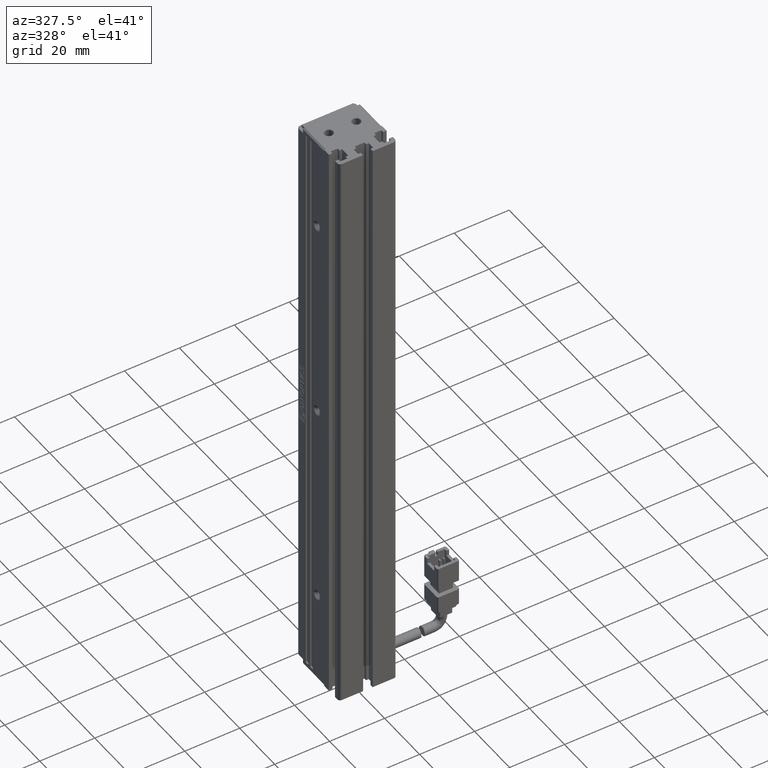
[diagram: clean part render]
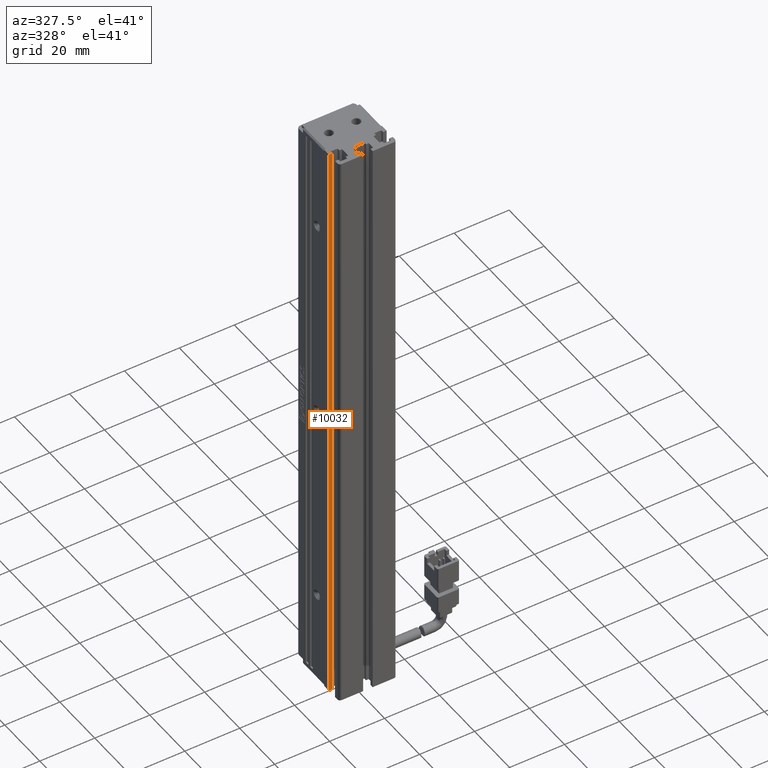
[diagram: same view with one face highlighted and labeled with its STEP entity id]
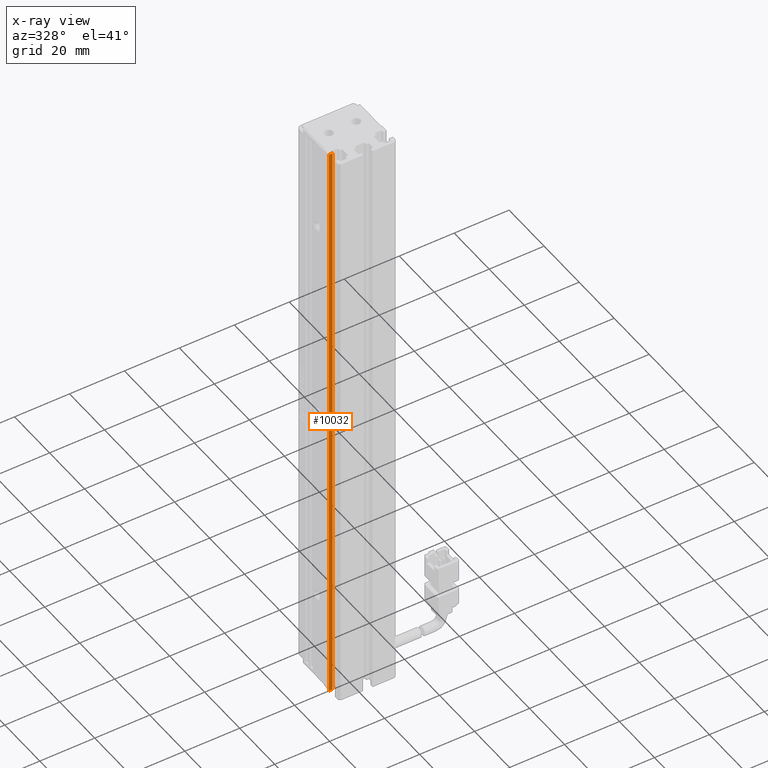
[diagram: x-ray of the same camera — body ghosted, the highlighted face saturated]
A machine part, auxiliary view. The second image highlights one B-rep face of the part: STEP entity #10032.
The next image is the same camera in x-ray: the body ghosted, the highlighted face saturated — about 0% of this face is hidden behind the body in this view.
In plain terms, the highlighted planar face has unit normal (0, 1, 0).
Its self-contained STEP definition (entity closure, byte-faithful):
#1270 = VECTOR ( 'NONE', #25240, 1000.000000000000000 ) ;
#7480 = FACE_OUTER_BOUND ( 'NONE', #17743, .T. ) ;
#8923 = ORIENTED_EDGE ( 'NONE', *, *, #52788, .F. ) ;
#9541 = DIRECTION ( 'NONE',  ( 0.0000000000000000000, -0.0000000000000000000, 1.000000000000000000 ) ) ;
#9895 = PLANE ( 'NONE',  #38625 ) ;
#10032 = ADVANCED_FACE ( 'NONE', ( #7480 ), #9895, .F. ) ;
#10852 = ORIENTED_EDGE ( 'NONE', *, *, #11806, .F. ) ;
#11321 = CARTESIAN_POINT ( 'NONE',  ( 31.72537974683542600, 16.79073232304837400, -6.000000000000005300 ) ) ;
#11464 = ORIENTED_EDGE ( 'NONE', *, *, #53112, .T. ) ;
#11806 = EDGE_CURVE ( 'NONE', #16167, #34837, #27872, .T. ) ;
#12962 = CARTESIAN_POINT ( 'NONE',  ( 30.42537974683542100, 16.79073232304837400, -6.000000000000005300 ) ) ;
#16167 = VERTEX_POINT ( 'NONE', #11321 ) ;
#17185 = LINE ( 'NONE', #53547, #18536 ) ;
#17743 = EDGE_LOOP ( 'NONE', ( #10852, #35696, #8923, #11464 ) ) ;
#18536 = VECTOR ( 'NONE', #24101, 1000.000000000000000 ) ;
#20227 = VECTOR ( 'NONE', #27754, 1000.000000000000000 ) ;
#24101 = DIRECTION ( 'NONE',  ( 1.000000000000000000, 0.0000000000000000000, 0.0000000000000000000 ) ) ;
#24331 = VERTEX_POINT ( 'NONE', #48986 ) ;
#25240 = DIRECTION ( 'NONE',  ( 0.0000000000000000000, 0.0000000000000000000, 1.000000000000000000 ) ) ;
#26141 = LINE ( 'NONE', #37423, #1270 ) ;
#27754 = DIRECTION ( 'NONE',  ( 1.000000000000000000, 0.0000000000000000000, 0.0000000000000000000 ) ) ;
#27872 = LINE ( 'NONE', #28586, #47720 ) ;
#28586 = CARTESIAN_POINT ( 'NONE',  ( 31.72537974683542600, 16.79073232304837400, -6.000000000000005300 ) ) ;
#31043 = DIRECTION ( 'NONE',  ( 0.0000000000000000000, 1.000000000000000000, 0.0000000000000000000 ) ) ;
#34721 = CARTESIAN_POINT ( 'NONE',  ( 40.92537974683542500, 16.79073232304837400, -6.000000000000005300 ) ) ;
#34837 = VERTEX_POINT ( 'NONE', #45115 ) ;
#35696 = ORIENTED_EDGE ( 'NONE', *, *, #44303, .F. ) ;
#36021 = LINE ( 'NONE', #44937, #20227 ) ;
#37423 = CARTESIAN_POINT ( 'NONE',  ( 30.42537974683542100, 16.79073232304837400, -6.000000000000005300 ) ) ;
#38625 = AXIS2_PLACEMENT_3D ( 'NONE', #34721, #31043, #9541 ) ;
#42991 = VERTEX_POINT ( 'NONE', #12962 ) ;
#44303 = EDGE_CURVE ( 'NONE', #42991, #16167, #17185, .T. ) ;
#44937 = CARTESIAN_POINT ( 'NONE',  ( 40.92537974683542500, 16.79073232304837400, -224.0000000000000000 ) ) ;
#45115 = CARTESIAN_POINT ( 'NONE',  ( 31.72537974683542600, 16.79073232304837400, -224.0000000000000000 ) ) ;
#47720 = VECTOR ( 'NONE', #54009, 1000.000000000000000 ) ;
#48986 = CARTESIAN_POINT ( 'NONE',  ( 30.42537974683542100, 16.79073232304837400, -224.0000000000000000 ) ) ;
#52788 = EDGE_CURVE ( 'NONE', #24331, #42991, #26141, .T. ) ;
#53112 = EDGE_CURVE ( 'NONE', #24331, #34837, #36021, .T. ) ;
#53547 = CARTESIAN_POINT ( 'NONE',  ( 40.92537974683542500, 16.79073232304837400, -6.000000000000005300 ) ) ;
#54009 = DIRECTION ( 'NONE',  ( -0.0000000000000000000, 0.0000000000000000000, -1.000000000000000000 ) ) ;